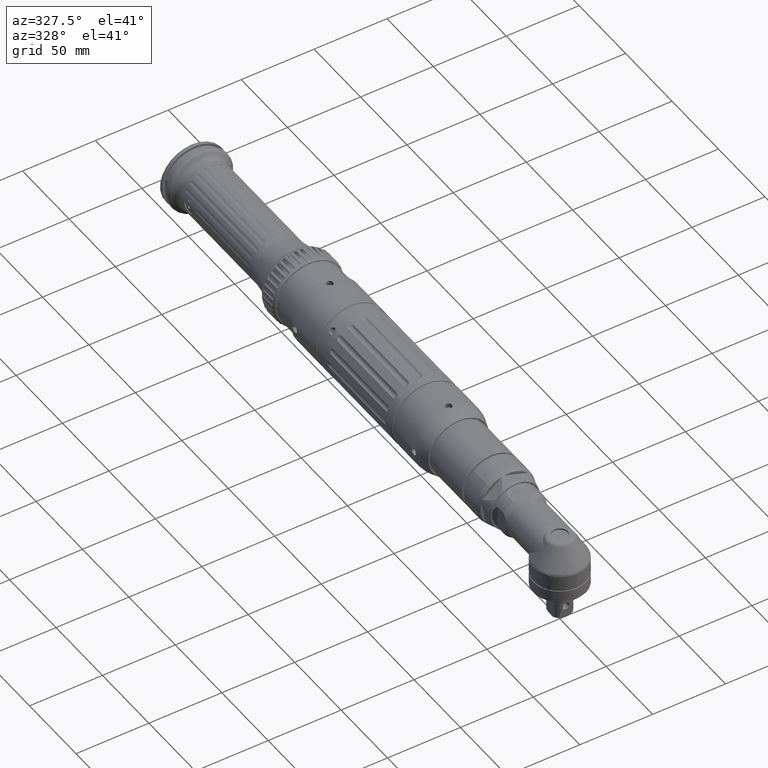
[diagram: clean part render]
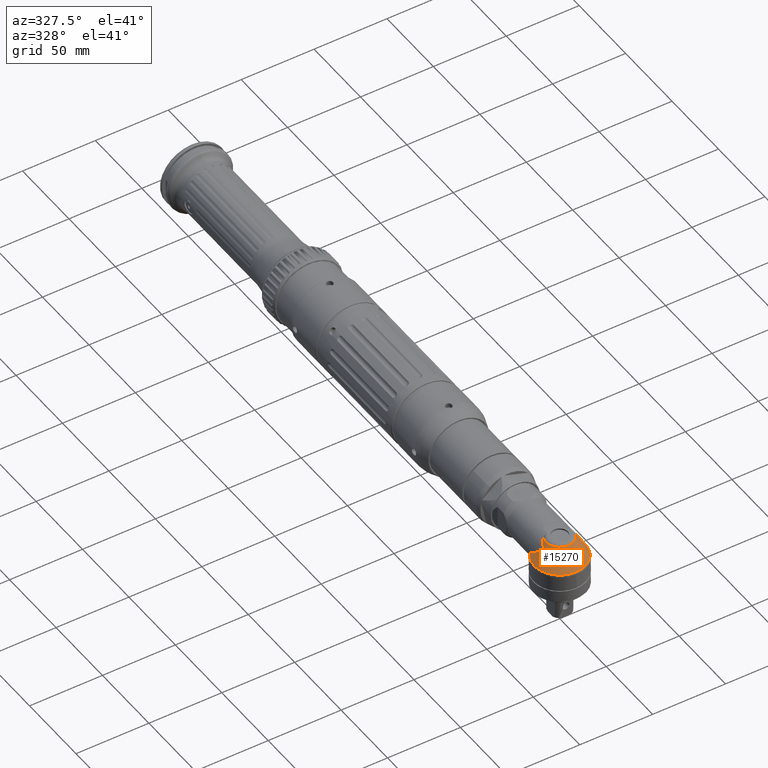
[diagram: same view with one face highlighted and labeled with its STEP entity id]
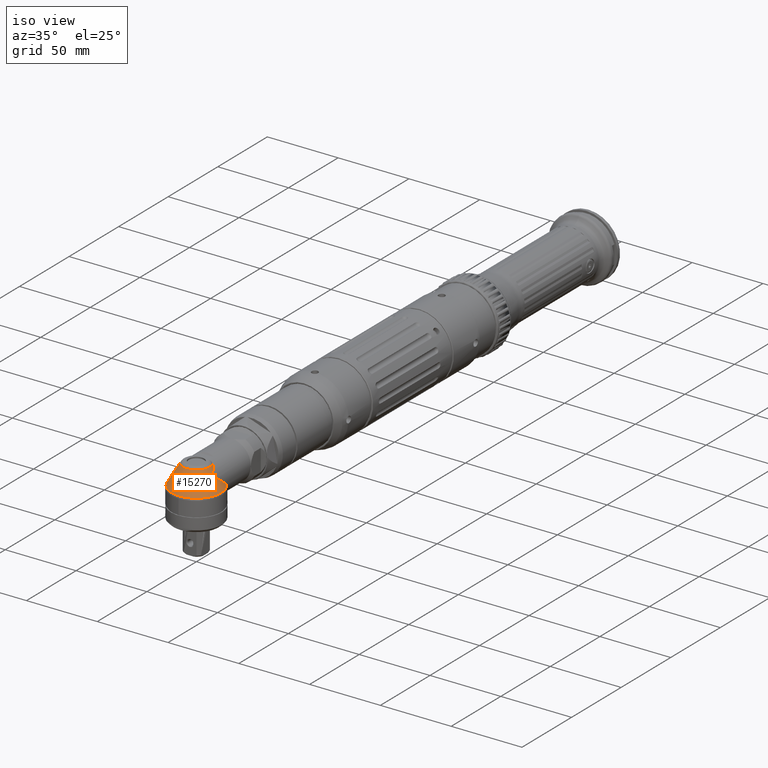
[diagram: same view with one face highlighted and labeled with its STEP entity id]
A machine part, auxiliary view. The second image highlights one B-rep face of the part: STEP entity #15270.
A second angle (iso view) of the same face is appended — the face is thin or edge-on in the first view.
In plain terms, the highlighted conical surface has half-angle 30 deg.
Its self-contained STEP definition (entity closure, byte-faithful):
#301=CONICAL_SURFACE('',#16331,13.25,30.);
#402=B_SPLINE_CURVE_WITH_KNOTS('',3,(#24373,#24374,#24375,#24376,#24377,
#24378,#24379,#24380,#24381,#24382,#24383,#24384,#24385,#24386),
 .UNSPECIFIED.,.F.,.F.,(4,2,2,2,2,2,4),(3.40530504642907,3.50394886458541,
3.60259268274176,3.79988031905444,4.19445559167981,4.58903086430518,4.85221618798012),
 .UNSPECIFIED.);
#403=B_SPLINE_CURVE_WITH_KNOTS('',3,(#24390,#24391,#24392,#24393,#24394,
#24395,#24396,#24397,#24398,#24399),.UNSPECIFIED.,.F.,.F.,(4,2,2,2,4),(-0.705998900967671,
-0.444792625547526,-0.222396312773763,-0.111198156386882,0.),
 .UNSPECIFIED.);
#404=B_SPLINE_CURVE_WITH_KNOTS('',3,(#24403,#24404,#24405,#24406,#24407,
#24408,#24409,#24410,#24411,#24412),.UNSPECIFIED.,.F.,.F.,(4,2,2,2,4),(3.17390460403441,
3.28510276042129,3.39630091680817,3.61869722958194,3.87990350500208),
 .UNSPECIFIED.);
#405=B_SPLINE_CURVE_WITH_KNOTS('',3,(#24415,#24416,#24417,#24418,#24419,
#24420,#24421,#24422,#24423,#24424,#24425,#24426,#24427,#24428),
 .UNSPECIFIED.,.F.,.F.,(4,2,2,2,2,2,4),(1.95839390487804,2.22157922855296,
2.61615450117833,3.0107297738037,3.20801741011639,3.30666122827273,3.40530504642907),
 .UNSPECIFIED.);
#1492=LINE('',#24388,#2359);
#1493=LINE('',#24414,#2360);
#2359=VECTOR('',#18737,10.);
#2360=VECTOR('',#18740,10.);
#3173=FACE_OUTER_BOUND('',#4164,.T.);
#4164=EDGE_LOOP('',(#10320,#10321,#10322,#10323,#10324,#10325,#10326,#10327));
#5314=CIRCLE('',#16329,17.5980762113533);
#5316=CIRCLE('',#16332,9.36602540378446);
#6436=VERTEX_POINT('',#24352);
#6437=VERTEX_POINT('',#24361);
#6439=VERTEX_POINT('',#24372);
#6440=VERTEX_POINT('',#24387);
#6441=VERTEX_POINT('',#24389);
#6442=VERTEX_POINT('',#24400);
#6443=VERTEX_POINT('',#24402);
#6444=VERTEX_POINT('',#24413);
#7943=EDGE_CURVE('',#6436,#6437,#5314,.T.);
#7946=EDGE_CURVE('',#6439,#6436,#402,.T.);
#7947=EDGE_CURVE('',#6440,#6439,#1492,.T.);
#7948=EDGE_CURVE('',#6441,#6440,#403,.T.);
#7949=EDGE_CURVE('',#6442,#6441,#5316,.T.);
#7950=EDGE_CURVE('',#6443,#6442,#404,.T.);
#7951=EDGE_CURVE('',#6444,#6443,#1493,.T.);
#7952=EDGE_CURVE('',#6437,#6444,#405,.T.);
#10320=ORIENTED_EDGE('',*,*,#7943,.F.);
#10321=ORIENTED_EDGE('',*,*,#7946,.F.);
#10322=ORIENTED_EDGE('',*,*,#7947,.F.);
#10323=ORIENTED_EDGE('',*,*,#7948,.F.);
#10324=ORIENTED_EDGE('',*,*,#7949,.F.);
#10325=ORIENTED_EDGE('',*,*,#7950,.F.);
#10326=ORIENTED_EDGE('',*,*,#7951,.F.);
#10327=ORIENTED_EDGE('',*,*,#7952,.F.);
#15270=ADVANCED_FACE('',(#3173),#301,.T.);
#16329=AXIS2_PLACEMENT_3D('',#24362,#18731,#18732);
#16331=AXIS2_PLACEMENT_3D('',#24371,#18735,#18736);
#16332=AXIS2_PLACEMENT_3D('',#24401,#18738,#18739);
#18731=DIRECTION('center_axis',(1.48287365964328E-16,-8.82089870722468E-15,
-1.));
#18732=DIRECTION('ref_axis',(8.84611317091605E-16,-1.,8.82089870722468E-15));
#18735=DIRECTION('center_axis',(1.16743491188149E-16,-8.72626708289615E-15,
-1.));
#18736=DIRECTION('ref_axis',(8.23378977134237E-16,-1.,8.72626708289615E-15));
#18737=DIRECTION('',(0.5,-7.14547948542887E-15,-0.866025403784439));
#18738=DIRECTION('center_axis',(3.57405564259237E-16,8.72626708289615E-15,
1.));
#18739=DIRECTION('ref_axis',(8.84611317091604E-16,-1.,8.72626708289615E-15));
#18740=DIRECTION('',(0.5,7.96885846256311E-15,0.866025403784439));
#24352=CARTESIAN_POINT('',(13.7255824734833,11.0136584341453,-2.75833024919308));
#24361=CARTESIAN_POINT('',(-13.7255824734844,11.0136584341453,-2.75833024919309));
#24362=CARTESIAN_POINT('Origin',(-5.53534384136075E-13,-1.4210854715202E-13,
-2.75833024919713));
#24371=CARTESIAN_POINT('Origin',(-5.57646303903763E-13,-7.105427357601E-14,
4.7727586640484));
#24372=CARTESIAN_POINT('',(12.9873605377563,-5.32907051820075E-14,5.2276635567261));
#24373=CARTESIAN_POINT('Ctrl Pts',(12.9873605377563,-7.09154956979319E-14,
5.22766355672612));
#24374=CARTESIAN_POINT('Ctrl Pts',(12.9873605377563,0.328812727187753,5.22766355672612));
#24375=CARTESIAN_POINT('Ctrl Pts',(13.0149731918321,0.611384943635933,5.15949552771321));
#24376=CARTESIAN_POINT('Ctrl Pts',(13.087060029951,1.1387557790102,4.97380905121963));
#24377=CARTESIAN_POINT('Ctrl Pts',(13.1320440476462,1.38296120990077,4.85480759324498));
#24378=CARTESIAN_POINT('Ctrl Pts',(13.2739690470317,2.10169545294089,4.45873115142986));
#24379=CARTESIAN_POINT('Ctrl Pts',(13.3768283902347,2.55749382319674,4.14550432945748));
#24380=CARTESIAN_POINT('Ctrl Pts',(13.6648516191548,3.96173663875803,3.12582885194657));
#24381=CARTESIAN_POINT('Ctrl Pts',(13.8262356476904,4.92235219835807,2.34823549621331));
#24382=CARTESIAN_POINT('Ctrl Pts',(14.0062417895297,6.91560433181134,0.71006463728803));
#24383=CARTESIAN_POINT('Ctrl Pts',(14.0262380501167,7.9447906766346,-0.154835893213145));
#24384=CARTESIAN_POINT('Ctrl Pts',(13.9199998022949,9.65734875289009,-1.60356852657758));
#24385=CARTESIAN_POINT('Ctrl Pts',(13.8407266260185,10.3415958326058,-2.18536747128213));
#24386=CARTESIAN_POINT('Ctrl Pts',(13.7255824734829,11.0136584341475,-2.75833024919075));
#24387=CARTESIAN_POINT('',(11.0209697114403,-5.32907051820075E-14,8.63355237544274));
#24388=CARTESIAN_POINT('',(13.2499999999994,-7.105427357601E-14,4.7727586640484));
#24389=CARTESIAN_POINT('',(7.98435971133513,4.89616501604418,11.5000000000005));
#24390=CARTESIAN_POINT('Ctrl Pts',(7.98435971133514,4.8961650160442,11.5000000000005));
#24391=CARTESIAN_POINT('Ctrl Pts',(8.58109122359643,4.38062505155532,11.0856939960889));
#24392=CARTESIAN_POINT('Ctrl Pts',(9.1183380641205,3.81911233981466,10.6416979802054));
#24393=CARTESIAN_POINT('Ctrl Pts',(9.96174800663553,2.75159290856836,9.85120130894817));
#24394=CARTESIAN_POINT('Ctrl Pts',(10.2865087442615,2.26169048963497,9.50477021551351));
#24395=CARTESIAN_POINT('Ctrl Pts',(10.6726741160037,1.49356799530517,9.06269383630864));
#24396=CARTESIAN_POINT('Ctrl Pts',(10.7835015732708,1.23470723858199,8.92943600330219));
#24397=CARTESIAN_POINT('Ctrl Pts',(10.9560612316614,0.672009539808123,8.71684998142055));
#24398=CARTESIAN_POINT('Ctrl Pts',(11.0209697114403,0.370660521289548,8.6335523754427));
#24399=CARTESIAN_POINT('Ctrl Pts',(11.0209697114403,-5.32907051820075E-14,
8.63355237544271));
#24400=CARTESIAN_POINT('',(-7.98435971133624,4.8961650160442,11.5000000000005));
#24401=CARTESIAN_POINT('Origin',(-5.56711154588666E-13,-1.77635683940025E-14,
11.5000000000006));
#24402=CARTESIAN_POINT('',(-11.0209697114414,-5.32907051820075E-14,8.63355237544273));
#24403=CARTESIAN_POINT('Ctrl Pts',(-11.0209697114414,-5.32907051820073E-14,
8.63355237544272));
#24404=CARTESIAN_POINT('Ctrl Pts',(-11.0209697114414,0.370660521289548,
8.63355237544272));
#24405=CARTESIAN_POINT('Ctrl Pts',(-10.9560612316625,0.67200953980814,8.71684998142053));
#24406=CARTESIAN_POINT('Ctrl Pts',(-10.783501573272,1.23470723858199,8.92943600330218));
#24407=CARTESIAN_POINT('Ctrl Pts',(-10.6726741160048,1.49356799530517,9.06269383630863));
#24408=CARTESIAN_POINT('Ctrl Pts',(-10.2865087442627,2.26169048963497,9.50477021551351));
#24409=CARTESIAN_POINT('Ctrl Pts',(-9.96174800663665,2.75159290856836,9.85120130894817));
#24410=CARTESIAN_POINT('Ctrl Pts',(-9.11833806412162,3.81911233981466,10.6416979802054));
#24411=CARTESIAN_POINT('Ctrl Pts',(-8.58109122359755,4.38062505155532,11.0856939960889));
#24412=CARTESIAN_POINT('Ctrl Pts',(-7.98435971133624,4.89616501604421,11.5000000000005));
#24413=CARTESIAN_POINT('',(-12.9873605377574,-7.105427357601E-14,5.2276635567261));
#24414=CARTESIAN_POINT('',(-13.2500000000006,-8.88178419700125E-14,4.7727586640484));
#24415=CARTESIAN_POINT('Ctrl Pts',(-13.7255824734841,11.0136584341473,-2.75833024919066));
#24416=CARTESIAN_POINT('Ctrl Pts',(-13.8407266260196,10.3415958326057,-2.18536747128209));
#24417=CARTESIAN_POINT('Ctrl Pts',(-13.919999802296,9.65734875289003,-1.60356852657755));
#24418=CARTESIAN_POINT('Ctrl Pts',(-14.0262380501179,7.94479067663458,-0.154835893213145));
#24419=CARTESIAN_POINT('Ctrl Pts',(-14.0062417895309,6.91560433181131,0.710064637288038));
#24420=CARTESIAN_POINT('Ctrl Pts',(-13.8262356476916,4.92235219835806,2.34823549621331));
#24421=CARTESIAN_POINT('Ctrl Pts',(-13.664851619156,3.96173663875802,3.12582885194656));
#24422=CARTESIAN_POINT('Ctrl Pts',(-13.3768283902358,2.55749382319671,4.14550432945747));
#24423=CARTESIAN_POINT('Ctrl Pts',(-13.2739690470329,2.10169545294086,4.45873115142985));
#24424=CARTESIAN_POINT('Ctrl Pts',(-13.1320440476473,1.38296120990077,4.85480759324497));
#24425=CARTESIAN_POINT('Ctrl Pts',(-13.0870600299522,1.13875577901018,4.97380905121961));
#24426=CARTESIAN_POINT('Ctrl Pts',(-13.0149731918333,0.611384943635915,
5.15949552771319));
#24427=CARTESIAN_POINT('Ctrl Pts',(-12.9873605377574,0.328812727187735,
5.22766355672611));
#24428=CARTESIAN_POINT('Ctrl Pts',(-12.9873605377574,-7.08808012284123E-14,
5.22766355672611));